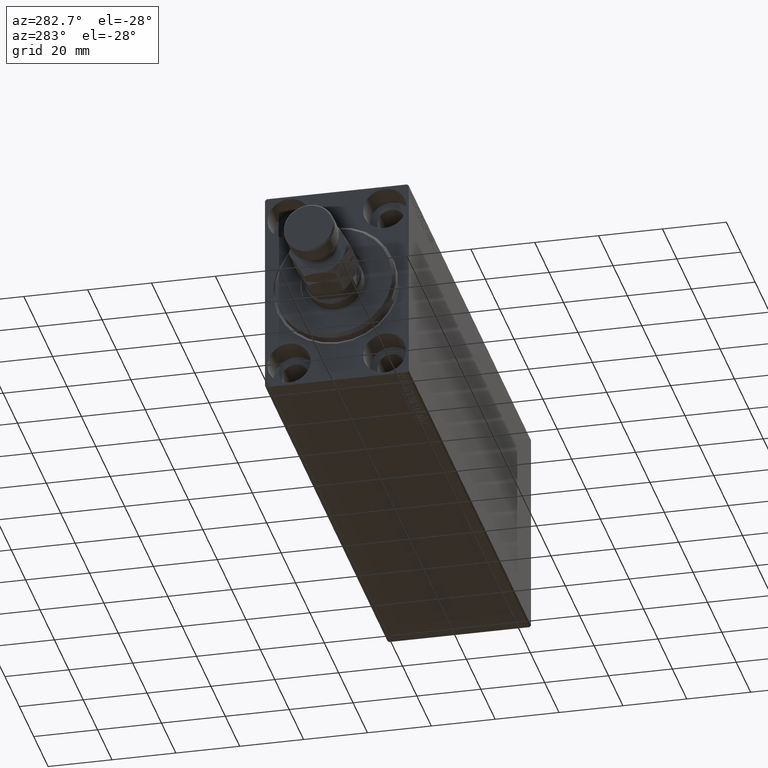
[diagram: clean part render]
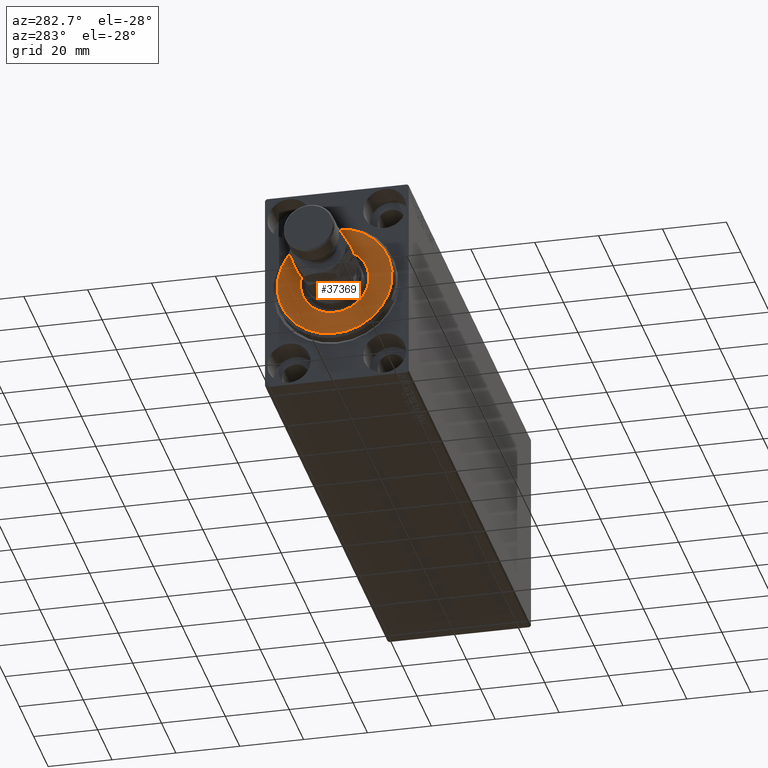
[diagram: same view with one face highlighted and labeled with its STEP entity id]
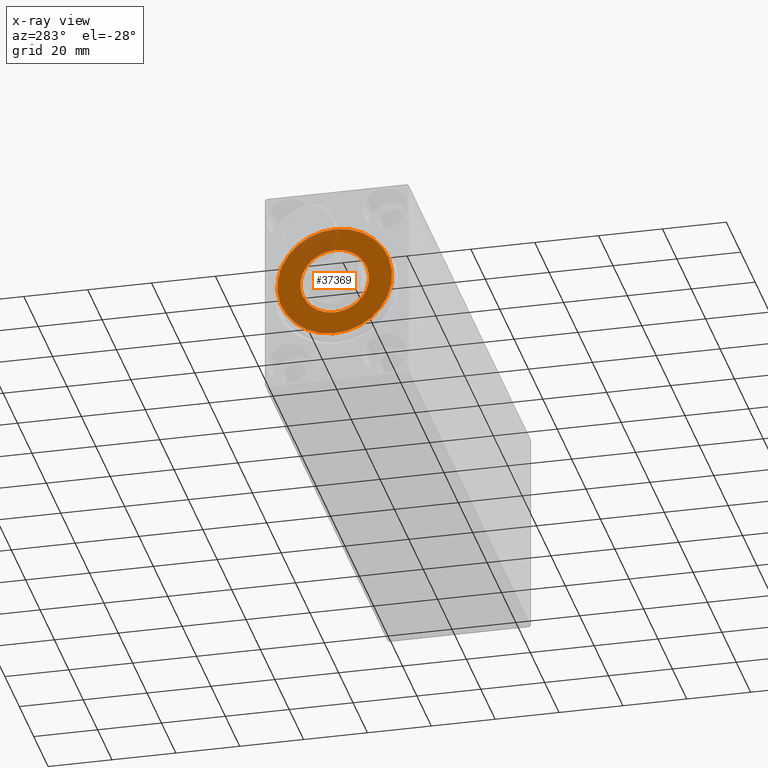
[diagram: x-ray of the same camera — body ghosted, the highlighted face saturated]
A machine part, auxiliary view. The second image highlights one B-rep face of the part: STEP entity #37369.
The next image is the same camera in x-ray: the body ghosted, the highlighted face saturated — about 14% of this face is hidden behind the body in this view.
In plain terms, the highlighted planar face has unit normal (-1, 0, 0).
Its self-contained STEP definition (entity closure, byte-faithful):
#437 = DIRECTION ( 'NONE',  ( -1.000000000000000000, 0.000000000000000000, -0.000000000000000000 ) ) ;
#1324 = DIRECTION ( 'NONE',  ( 1.000000000000000000, -0.000000000000000000, 0.000000000000000000 ) ) ;
#2159 = VERTEX_POINT ( 'NONE', #22016 ) ;
#2443 = CARTESIAN_POINT ( 'NONE',  ( 3.000000000000000000, 0.000000000000000000, 0.000000000000000000 ) ) ;
#3125 = PLANE ( 'NONE',  #9937 ) ;
#8021 = AXIS2_PLACEMENT_3D ( 'NONE', #12421, #23220, #36993 ) ;
#8555 = VERTEX_POINT ( 'NONE', #11140 ) ;
#9353 = DIRECTION ( 'NONE',  ( 1.000000000000000000, -0.000000000000000000, 0.000000000000000000 ) ) ;
#9670 = CIRCLE ( 'NONE', #20041, 10.75000000000000000 ) ;
#9737 = AXIS2_PLACEMENT_3D ( 'NONE', #12358, #1324, #36247 ) ;
#9937 = AXIS2_PLACEMENT_3D ( 'NONE', #2443, #9353, #27275 ) ;
#10427 = CIRCLE ( 'NONE', #9737, 17.99999999999999645 ) ;
#11128 = DIRECTION ( 'NONE',  ( -1.000000000000000000, 0.000000000000000000, -0.000000000000000000 ) ) ;
#11140 = CARTESIAN_POINT ( 'NONE',  ( 3.000000000000000000, 0.000000000000000000, 17.99999999999999645 ) ) ;
#12358 = CARTESIAN_POINT ( 'NONE',  ( 3.000000000000000000, 0.000000000000000000, 0.000000000000000000 ) ) ;
#12421 = CARTESIAN_POINT ( 'NONE',  ( 3.000000000000000000, 0.000000000000000000, 0.000000000000000000 ) ) ;
#14799 = DIRECTION ( 'NONE',  ( 0.000000000000000000, 0.000000000000000000, -1.000000000000000000 ) ) ;
#16021 = EDGE_LOOP ( 'NONE', ( #17213, #43424 ) ) ;
#17213 = ORIENTED_EDGE ( 'NONE', *, *, #29234, .T. ) ;
#18776 = VERTEX_POINT ( 'NONE', #37599 ) ;
#19499 = EDGE_CURVE ( 'NONE', #18776, #8555, #43235, .T. ) ;
#20041 = AXIS2_PLACEMENT_3D ( 'NONE', #31923, #437, #25256 ) ;
#22016 = CARTESIAN_POINT ( 'NONE',  ( 3.000000000000000000, 1.316495309083404223E-15, -10.75000000000000000 ) ) ;
#23220 = DIRECTION ( 'NONE',  ( 1.000000000000000000, -0.000000000000000000, 0.000000000000000000 ) ) ;
#25256 = DIRECTION ( 'NONE',  ( 0.000000000000000000, 0.000000000000000000, -1.000000000000000000 ) ) ;
#27275 = DIRECTION ( 'NONE',  ( 0.000000000000000000, 0.000000000000000000, -1.000000000000000000 ) ) ;
#27680 = EDGE_CURVE ( 'NONE', #8555, #18776, #10427, .T. ) ;
#27739 = FACE_OUTER_BOUND ( 'NONE', #33034, .T. ) ;
#29234 = EDGE_CURVE ( 'NONE', #42852, #2159, #9670, .T. ) ;
#31923 = CARTESIAN_POINT ( 'NONE',  ( 3.000000000000000000, 0.000000000000000000, 0.000000000000000000 ) ) ;
#33034 = EDGE_LOOP ( 'NONE', ( #43927, #44946 ) ) ;
#34603 = FACE_BOUND ( 'NONE', #16021, .T. ) ;
#36247 = DIRECTION ( 'NONE',  ( 0.000000000000000000, 0.000000000000000000, -1.000000000000000000 ) ) ;
#36993 = DIRECTION ( 'NONE',  ( 0.000000000000000000, 0.000000000000000000, -1.000000000000000000 ) ) ;
#37369 = ADVANCED_FACE ( 'NONE', ( #27739, #34603 ), #3125, .T. ) ;
#37599 = CARTESIAN_POINT ( 'NONE',  ( 3.000000000000000000, 2.265596578422603002E-15, -17.99999999999999645 ) ) ;
#42467 = EDGE_CURVE ( 'NONE', #2159, #42852, #44563, .T. ) ;
#42592 = CARTESIAN_POINT ( 'NONE',  ( 3.000000000000000000, 0.000000000000000000, 0.000000000000000000 ) ) ;
#42852 = VERTEX_POINT ( 'NONE', #44060 ) ;
#43064 = AXIS2_PLACEMENT_3D ( 'NONE', #42592, #11128, #14799 ) ;
#43235 = CIRCLE ( 'NONE', #8021, 17.99999999999999645 ) ;
#43424 = ORIENTED_EDGE ( 'NONE', *, *, #42467, .T. ) ;
#43927 = ORIENTED_EDGE ( 'NONE', *, *, #27680, .T. ) ;
#44060 = CARTESIAN_POINT ( 'NONE',  ( 3.000000000000000000, 0.000000000000000000, 10.75000000000000000 ) ) ;
#44563 = CIRCLE ( 'NONE', #43064, 10.75000000000000000 ) ;
#44946 = ORIENTED_EDGE ( 'NONE', *, *, #19499, .T. ) ;